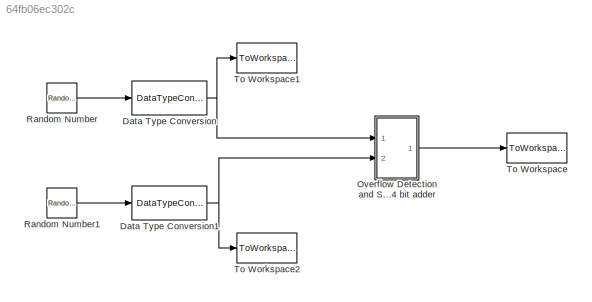
MODEL slx_64fb06ec302c
KIND model
CONFIG AbsTol = auto
CONFIG EnableMultiTasking = off
CONFIG FixedStep = auto
CONFIG MaxStep = auto
CONFIG MinStep = auto
CONFIG RelTol = 1e-3
CONFIG SampleTimeConstraint = Unconstrained
CONFIG Solver = VariableStepAuto
CONFIG SolverName = VariableStepAuto
CONFIG StartTime = 0.0
CONFIG StopTime = 10
BLOCK [DataTypeConversion] Data Type Conversion
  OutDataTypeStr = fixdt(1,4,0)
  RndMeth = Floor
  SaturateOnIntegerOverflow = off
BLOCK [DataTypeConversion] Data Type Conversion1
  OutDataTypeStr = fixdt(1,4,0)
  RndMeth = Floor
  SaturateOnIntegerOverflow = off
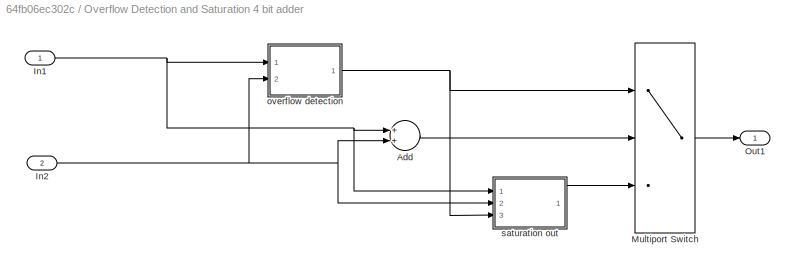
BLOCK [SubSystem] Overflow Detection and Saturation 4 bit adder
  Ports = [2, 1]
  RequestExecContextInheritance = off
  Variant = off
BLOCK [Sum] Overflow Detection and Saturation 4 bit adder/Add
  InputSameDT = off
  OutDataTypeStr = fixdt(1,4,0)
  Ports = [2, 1]
  SaturateOnIntegerOverflow = off
BLOCK [Inport] Overflow Detection and Saturation 4 bit adder/In1
  IconDisplay = Port number
BLOCK [Inport] Overflow Detection and Saturation 4 bit adder/In2
  IconDisplay = Port number
  Port = 2
BLOCK [MultiPortSwitch] Overflow Detection and Saturation 4 bit adder/Multiport Switch
  DataPortOrder = Zero-based contiguous
  InputSameDT = off
  Inputs = 2
  OutDataTypeStr = fixdt(1,4,0)
  Ports = [3, 1]
  SaturateOnIntegerOverflow = off
BLOCK [Outport] Overflow Detection and Saturation 4 bit adder/Out1
  IconDisplay = Port number
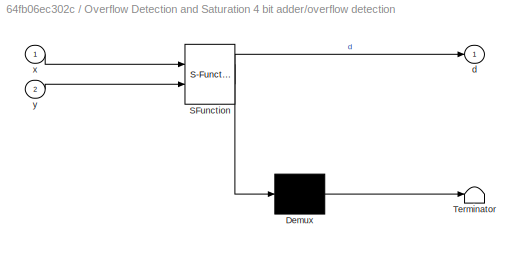
BLOCK [SubSystem] Overflow Detection and Saturation 4 bit adder/overflow detection
  ErrorFcn = Stateflow.Translate.translate
  PermitHierarchicalResolution = ExplicitOnly
  Ports = [2, 1]
  RequestExecContextInheritance = off
  SFBlockType = MATLAB Function
  TreatAsAtomicUnit = on
  Variant = off
BLOCK [Demux] Overflow Detection and Saturation 4 bit adder/overflow detection/ Demux 
  Outputs = 1
  Ports = [1, 1]
BLOCK [S-Function] Overflow Detection and Saturation 4 bit adder/overflow detection/ SFunction 
  EnableBusSupport = on
  FunctionName = sf_sfun
  PortCounts = [2 2]
  Ports = [2, 2]
  SFcnIsStateOwnerBlock = off
  SFunctionDeploymentMode = off
  Tag = Stateflow S-Function overflow_and_saturation 2
BLOCK [Terminator] Overflow Detection and Saturation 4 bit adder/overflow detection/ Terminator 
BLOCK [Outport] Overflow Detection and Saturation 4 bit adder/overflow detection/d
  IconDisplay = Port number
BLOCK [Inport] Overflow Detection and Saturation 4 bit adder/overflow detection/x
  IconDisplay = Port number
BLOCK [Inport] Overflow Detection and Saturation 4 bit adder/overflow detection/y
  IconDisplay = Port number
  Port = 2
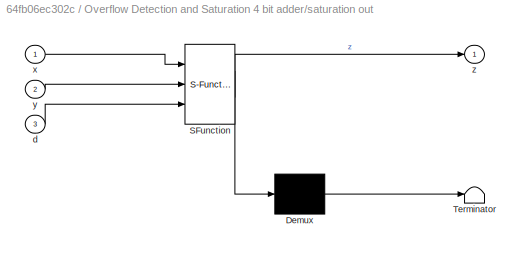
BLOCK [SubSystem] Overflow Detection and Saturation 4 bit adder/saturation out
  ErrorFcn = Stateflow.Translate.translate
  PermitHierarchicalResolution = ExplicitOnly
  Ports = [3, 1]
  RequestExecContextInheritance = off
  SFBlockType = MATLAB Function
  TreatAsAtomicUnit = on
  Variant = off
BLOCK [Demux] Overflow Detection and Saturation 4 bit adder/saturation out/ Demux 
  Outputs = 1
  Ports = [1, 1]
BLOCK [S-Function] Overflow Detection and Saturation 4 bit adder/saturation out/ SFunction 
  EnableBusSupport = on
  FunctionName = sf_sfun
  PortCounts = [3 2]
  Ports = [3, 2]
  SFcnIsStateOwnerBlock = off
  SFunctionDeploymentMode = off
  Tag = Stateflow S-Function overflow_and_saturation 1
BLOCK [Terminator] Overflow Detection and Saturation 4 bit adder/saturation out/ Terminator 
BLOCK [Inport] Overflow Detection and Saturation 4 bit adder/saturation out/d
  IconDisplay = Port number
  Port = 3
BLOCK [Inport] Overflow Detection and Saturation 4 bit adder/saturation out/x
  IconDisplay = Port number
BLOCK [Inport] Overflow Detection and Saturation 4 bit adder/saturation out/y
  IconDisplay = Port number
  Port = 2
BLOCK [Outport] Overflow Detection and Saturation 4 bit adder/saturation out/z
  IconDisplay = Port number
BLOCK [RandomNumber] Random Number
  SampleTime = 1
  Variance = 10
BLOCK [RandomNumber] Random Number1
  SampleTime = 1
  Seed = 1
  Variance = 20
BLOCK [ToWorkspace] To Workspace
  FixptAsFi = on
  MaxDataPoints = inf
  Ports = [1]
  SampleTime = -1
  Save2DSignal = 3-D array (concatenate along third dimension)
  VariableName = res
BLOCK [ToWorkspace] To Workspace1
  FixptAsFi = on
  MaxDataPoints = inf
  Ports = [1]
  SampleTime = -1
  Save2DSignal = 3-D array (concatenate along third dimension)
  VariableName = x
BLOCK [ToWorkspace] To Workspace2
  FixptAsFi = on
  MaxDataPoints = inf
  Ports = [1]
  SampleTime = -1
  Save2DSignal = 3-D array (concatenate along third dimension)
  VariableName = y
NET Data Type Conversion1:1 -> Overflow Detection and Saturation 4 bit adder:2, To Workspace2:1
NET Data Type Conversion:1 -> Overflow Detection and Saturation 4 bit adder:1, To Workspace1:1
LINE Overflow Detection and Saturation 4 bit adder/Add:1 -> Overflow Detection and Saturation 4 bit adder/Multiport Switch:2
NET Overflow Detection and Saturation 4 bit adder/In1:1 -> Overflow Detection and Saturation 4 bit adder/Add:1, Overflow Detection and Saturation 4 bit adder/overflow detection:1, Overflow Detection and Saturation 4 bit adder/saturation out:1
NET Overflow Detection and Saturation 4 bit adder/In2:1 -> Overflow Detection and Saturation 4 bit adder/Add:2, Overflow Detection and Saturation 4 bit adder/overflow detection:2, Overflow Detection and Saturation 4 bit adder/saturation out:2
LINE Overflow Detection and Saturation 4 bit adder/Multiport Switch:1 -> Overflow Detection and Saturation 4 bit adder/Out1:1
NET Overflow Detection and Saturation 4 bit adder/overflow detection:1 -> Overflow Detection and Saturation 4 bit adder/Multiport Switch:1, Overflow Detection and Saturation 4 bit adder/saturation out:3
LINE Overflow Detection and Saturation 4 bit adder/saturation out:1 -> Overflow Detection and Saturation 4 bit adder/Multiport Switch:3
LINE Overflow Detection and Saturation 4 bit adder:1 -> To Workspace:1
LINE Random Number1:1 -> Data Type Conversion1:1
LINE Random Number:1 -> Data Type Conversion:1
note: NET lines group one-source signal fan-out (src -> all destinations, sorted); 1:1 wires keep LINE
CHART Overflow Detection and Saturation 4 bit adder/saturation out states=1 transitions=1
  STATE_LABEL 'eML_blk_kernel()'
  STATE_LABEL 'SCRIPT:\nfunction z = fcn(x,y,d)\n\ns1 = bitget(x,4);\ns2 = bitget(y,4);\n\nif (d == 1)\n    if(bitand(s1,s2))\n        z = fi(-8,1,4,0);\n    else\n        z = fi(7,1,4,0);\n    end\nelse\n    z = x;      % this path is irrelevant\nend\n'
CHART Overflow Detection and Saturation 4 bit adder/overflow detection states=1 transitions=1
  STATE_LABEL 'eML_blk_kernel()'
  STATE_LABEL 'SCRIPT:\nfunction d = fcn(x,y)\n\nx0 = bitget(x,1);\nx1 = bitget(x,2);\nx2 = bitget(x,3);\nx3 = bitget(x,4);\n\ny0 = bitget(y,1);\ny1 = bitget(y,2);\ny2 = bitget(y,3);\ny3 = bitget(y,4);\n\nc1 = bitand(x0, y0);\n\nt1 = bitand(x1,y1);\nt2 = bitand(bitor(x1,y1),c1);\nc2 = bitor(t1,t2);\n\nt1 = bitand(x2,y2);\nt2 = bitand(bitor(x2,y2),c2);\nc3 = bitor(t1,t2);\n\nt1 = bitand(x3,y3);\nt2 = bitand(bitor(x3,y3),c3);\nc4 = bitor(...<+28ch>'
